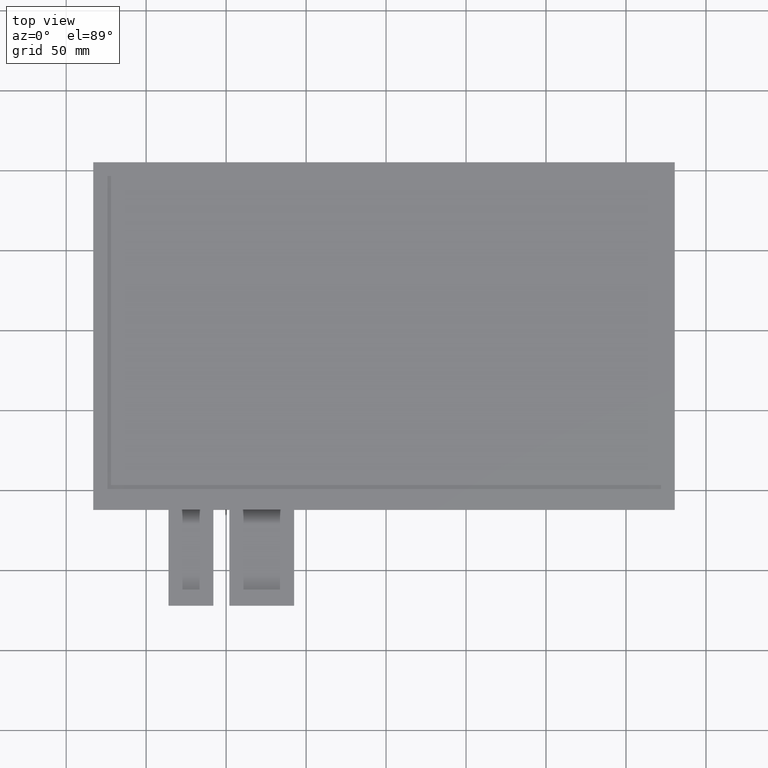
[diagram: clean part render]
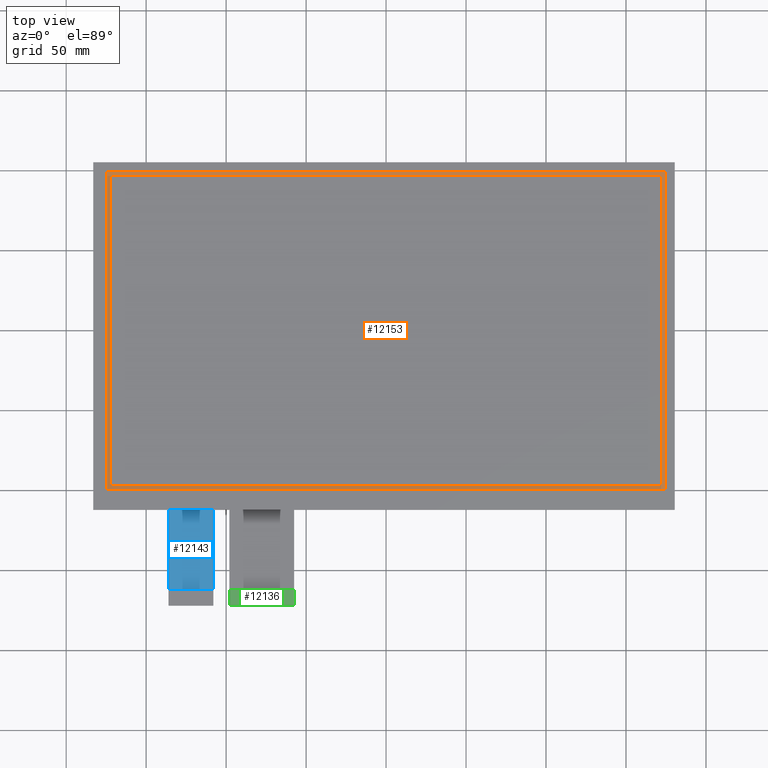
[diagram: same view with three faces highlighted in distinct colors, each labeled with its STEP entity id]
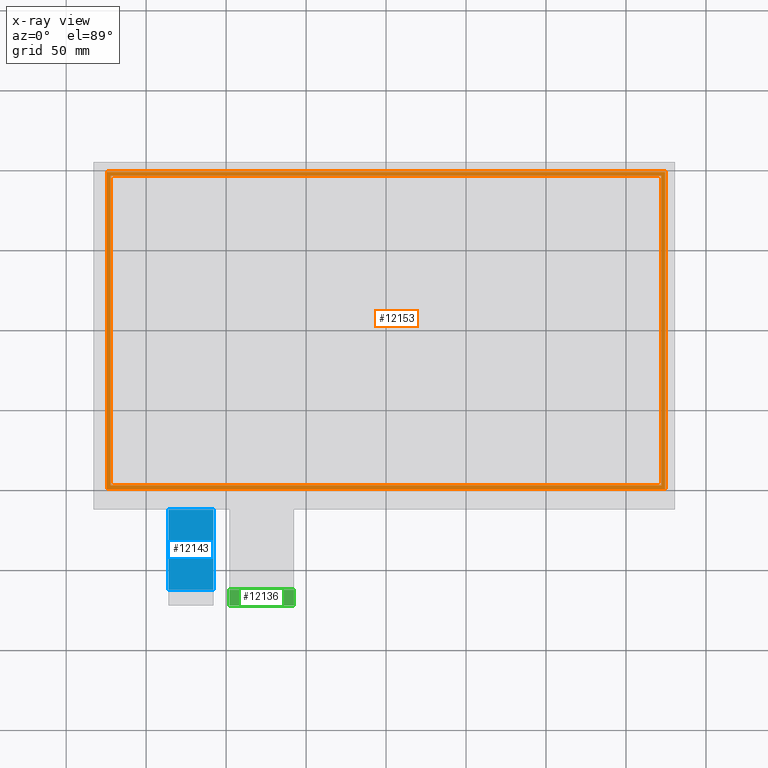
[diagram: x-ray of the same camera — body ghosted, the three highlighted faces saturated]
A machine part, top view with three faces highlighted in distinct colors.
The next image is the same camera in x-ray (body ghosted, the three faces saturated) — at least one of them is partly hidden behind the body in this view.
Their STEP definitions:

[orange] entity #12153 — the highlighted planar face has unit normal (0, 0, -1).
#125=FACE_BOUND('',#1852,.T.);
#695=PLANE('',#12759);
#1273=FACE_OUTER_BOUND('',#1851,.T.);
#1851=EDGE_LOOP('',(#11531,#11532,#11533,#11534));
#1852=EDGE_LOOP('',(#11535,#11536,#11537,#11538));
#3537=LINE('',#19019,#5245);
#3541=LINE('',#19026,#5249);
#3544=LINE('',#19032,#5252);
#3546=LINE('',#19035,#5254);
#3549=LINE('',#19043,#5257);
#3553=LINE('',#19050,#5261);
#3556=LINE('',#19056,#5264);
#3558=LINE('',#19059,#5266);
#5245=VECTOR('',#15585,10.);
#5249=VECTOR('',#15591,10.);
#5252=VECTOR('',#15596,10.);
#5254=VECTOR('',#15600,10.);
#5257=VECTOR('',#15605,10.);
#5261=VECTOR('',#15611,10.);
#5264=VECTOR('',#15616,10.);
#5266=VECTOR('',#15620,10.);
#6409=VERTEX_POINT('',#19016);
#6410=VERTEX_POINT('',#19018);
#6412=VERTEX_POINT('',#19024);
#6414=VERTEX_POINT('',#19030);
#6417=VERTEX_POINT('',#19040);
#6418=VERTEX_POINT('',#19042);
#6420=VERTEX_POINT('',#19048);
#6422=VERTEX_POINT('',#19054);
#8113=EDGE_CURVE('',#6409,#6410,#3537,.T.);
#8117=EDGE_CURVE('',#6412,#6409,#3541,.T.);
#8120=EDGE_CURVE('',#6414,#6412,#3544,.T.);
#8122=EDGE_CURVE('',#6410,#6414,#3546,.T.);
#8125=EDGE_CURVE('',#6417,#6418,#3549,.T.);
#8129=EDGE_CURVE('',#6420,#6417,#3553,.T.);
#8132=EDGE_CURVE('',#6422,#6420,#3556,.T.);
#8134=EDGE_CURVE('',#6418,#6422,#3558,.T.);
#11531=ORIENTED_EDGE('',*,*,#8134,.F.);
#11532=ORIENTED_EDGE('',*,*,#8125,.F.);
#11533=ORIENTED_EDGE('',*,*,#8129,.F.);
#11534=ORIENTED_EDGE('',*,*,#8132,.F.);
#11535=ORIENTED_EDGE('',*,*,#8122,.F.);
#11536=ORIENTED_EDGE('',*,*,#8113,.F.);
#11537=ORIENTED_EDGE('',*,*,#8117,.F.);
#11538=ORIENTED_EDGE('',*,*,#8120,.F.);
#12153=ADVANCED_FACE('',(#1273,#125),#695,.F.);
#12759=AXIS2_PLACEMENT_3D('',#19060,#15621,#15622);
#15585=DIRECTION('',(1.,0.,0.));
#15591=DIRECTION('',(0.,-1.,0.));
#15596=DIRECTION('',(-1.,0.,0.));
#15600=DIRECTION('',(0.,1.,0.));
#15605=DIRECTION('',(-3.58136459556502E-16,1.,0.));
#15611=DIRECTION('',(-1.,-1.01796953547292E-16,0.));
#15616=DIRECTION('',(1.79068229778251E-16,-1.,0.));
#15620=DIRECTION('',(1.,0.,0.));
#15621=DIRECTION('center_axis',(0.,0.,-1.));
#15622=DIRECTION('ref_axis',(-1.,0.,0.));
#19016=CARTESIAN_POINT('',(-172.15,-96.8,-0.1));
#19018=CARTESIAN_POINT('',(172.15,-96.8,-0.1));
#19019=CARTESIAN_POINT('',(172.15,-96.8,-0.1));
#19024=CARTESIAN_POINT('',(-172.15,96.8,-0.1));
#19026=CARTESIAN_POINT('',(-172.15,-96.8,-0.1));
#19030=CARTESIAN_POINT('',(172.15,96.8,-0.1));
#19032=CARTESIAN_POINT('',(-172.15,96.8,-0.1));
#19035=CARTESIAN_POINT('',(172.15,96.8,-0.1));
#19040=CARTESIAN_POINT('',(-174.5,-99.2,-0.1));
#19042=CARTESIAN_POINT('',(-174.5,99.2000000000001,-0.1));
#19043=CARTESIAN_POINT('',(-174.5,99.2000000000001,-0.1));
#19048=CARTESIAN_POINT('',(174.5,-99.2,-0.1));
#19050=CARTESIAN_POINT('',(-174.5,-99.2,-0.1));
#19054=CARTESIAN_POINT('',(174.5,99.2000000000001,-0.1));
#19056=CARTESIAN_POINT('',(174.5,-99.2,-0.1));
#19059=CARTESIAN_POINT('',(174.5,99.2000000000001,-0.1));
#19060=CARTESIAN_POINT('Origin',(-3.5527136788005E-14,3.5527136788005E-14,
-0.1));

[blue] entity #12143 — the highlighted planar face has unit normal (0, 0, 1).
#685=PLANE('',#12749);
#1263=FACE_OUTER_BOUND('',#1841,.T.);
#1841=EDGE_LOOP('',(#11491,#11492,#11493,#11494));
#3506=LINE('',#18956,#5214);
#3521=LINE('',#18986,#5229);
#3532=LINE('',#19007,#5240);
#3533=LINE('',#19009,#5241);
#5214=VECTOR('',#15528,10.);
#5229=VECTOR('',#15553,10.);
#5240=VECTOR('',#15574,10.);
#5241=VECTOR('',#15577,10.);
#6390=VERTEX_POINT('',#18953);
#6391=VERTEX_POINT('',#18955);
#6401=VERTEX_POINT('',#18985);
#6406=VERTEX_POINT('',#19005);
#8082=EDGE_CURVE('',#6391,#6390,#3506,.T.);
#8097=EDGE_CURVE('',#6390,#6401,#3521,.T.);
#8108=EDGE_CURVE('',#6401,#6406,#3532,.T.);
#8109=EDGE_CURVE('',#6391,#6406,#3533,.T.);
#11491=ORIENTED_EDGE('',*,*,#8097,.T.);
#11492=ORIENTED_EDGE('',*,*,#8108,.T.);
#11493=ORIENTED_EDGE('',*,*,#8109,.F.);
#11494=ORIENTED_EDGE('',*,*,#8082,.T.);
#12143=ADVANCED_FACE('',(#1263),#685,.T.);
#12749=AXIS2_PLACEMENT_3D('',#19008,#15575,#15576);
#15528=DIRECTION('',(1.77635683940025E-15,-1.,0.));
#15553=DIRECTION('',(1.,0.,0.));
#15574=DIRECTION('',(-8.88178419700125E-16,1.,0.));
#15575=DIRECTION('center_axis',(0.,0.,1.));
#15576=DIRECTION('ref_axis',(1.,0.,0.));
#15577=DIRECTION('',(1.,1.46564095660087E-16,0.));
#18953=CARTESIAN_POINT('',(-136.,-162.1,-1.1));
#18955=CARTESIAN_POINT('',(-136.,-112.1,-1.1));
#18956=CARTESIAN_POINT('',(-136.,-112.1,-1.1));
#18985=CARTESIAN_POINT('',(-108.,-162.1,-1.1));
#18986=CARTESIAN_POINT('',(-115.,-162.1,-1.1));
#19005=CARTESIAN_POINT('',(-108.,-112.1,-1.1));
#19007=CARTESIAN_POINT('',(-108.,-172.1,-1.1));
#19008=CARTESIAN_POINT('Origin',(-122.,-142.1,-1.1));
#19009=CARTESIAN_POINT('',(29.2500000000001,-112.1,-1.1));

[green] entity #12136 — the highlighted planar face has unit normal (0, 0, 1).
#678=PLANE('',#12742);
#1256=FACE_OUTER_BOUND('',#1834,.T.);
#1834=EDGE_LOOP('',(#11451,#11452,#11453,#11454,#11455,#11456));
#1869=LINE('',#15669,#3577);
#3512=LINE('',#18968,#5220);
#3518=LINE('',#18980,#5226);
#3520=LINE('',#18983,#5228);
#3577=VECTOR('',#12785,10.);
#5220=VECTOR('',#15538,10.);
#5226=VECTOR('',#15546,10.);
#5228=VECTOR('',#15550,10.);
#5280=CIRCLE('',#12183,0.2);
#5281=CIRCLE('',#12187,0.2);
#5289=VERTEX_POINT('',#15654);
#5290=VERTEX_POINT('',#15656);
#5294=VERTEX_POINT('',#15668);
#5615=VERTEX_POINT('',#16312);
#6395=VERTEX_POINT('',#18967);
#6400=VERTEX_POINT('',#18979);
#6433=EDGE_CURVE('',#5289,#5290,#5280,.T.);
#6439=EDGE_CURVE('',#5294,#5290,#1869,.T.);
#6761=EDGE_CURVE('',#5294,#5615,#5281,.T.);
#8088=EDGE_CURVE('',#6395,#5615,#3512,.T.);
#8094=EDGE_CURVE('',#6400,#6395,#3518,.T.);
#8096=EDGE_CURVE('',#5289,#6400,#3520,.T.);
#11451=ORIENTED_EDGE('',*,*,#6433,.F.);
#11452=ORIENTED_EDGE('',*,*,#8096,.T.);
#11453=ORIENTED_EDGE('',*,*,#8094,.T.);
#11454=ORIENTED_EDGE('',*,*,#8088,.T.);
#11455=ORIENTED_EDGE('',*,*,#6761,.F.);
#11456=ORIENTED_EDGE('',*,*,#6439,.T.);
#12136=ADVANCED_FACE('',(#1256),#678,.T.);
#12183=AXIS2_PLACEMENT_3D('',#15657,#12774,#12775);
#12187=AXIS2_PLACEMENT_3D('',#16313,#13109,#13110);
#12742=AXIS2_PLACEMENT_3D('',#18982,#15548,#15549);
#12774=DIRECTION('center_axis',(0.,0.,-1.));
#12775=DIRECTION('ref_axis',(0.707106781186579,-0.707106781186516,0.));
#12785=DIRECTION('',(1.,0.,0.));
#13109=DIRECTION('center_axis',(0.,0.,-1.));
#13110=DIRECTION('ref_axis',(-0.70710678118661,-0.707106781186485,0.));
#15538=DIRECTION('',(0.,-1.,0.));
#15546=DIRECTION('',(-1.,0.,0.));
#15548=DIRECTION('center_axis',(0.,0.,1.));
#15549=DIRECTION('ref_axis',(1.,0.,0.));
#15550=DIRECTION('',(-8.88178419700125E-16,1.,0.));
#15654=CARTESIAN_POINT('',(-57.4999999999999,-171.9,-0.8));
#15656=CARTESIAN_POINT('',(-57.6999999999999,-172.1,-0.8));
#15657=CARTESIAN_POINT('Origin',(-57.6999999999999,-171.9,-0.8));
#15668=CARTESIAN_POINT('',(-97.8,-172.1,-0.8));
#15669=CARTESIAN_POINT('',(-98.,-172.1,-0.8));
#16312=CARTESIAN_POINT('',(-98.,-171.9,-0.8));
#16313=CARTESIAN_POINT('Origin',(-97.8,-171.9,-0.8));
#18967=CARTESIAN_POINT('',(-98.,-162.1,-0.8));
#18968=CARTESIAN_POINT('',(-98.,-162.1,-0.8));
#18979=CARTESIAN_POINT('',(-57.5,-162.1,-0.8));
#18980=CARTESIAN_POINT('',(-57.5,-162.1,-0.8));
#18982=CARTESIAN_POINT('Origin',(-77.7499999999999,-167.1,-0.8));
#18983=CARTESIAN_POINT('',(-57.4999999999999,-172.1,-0.8));